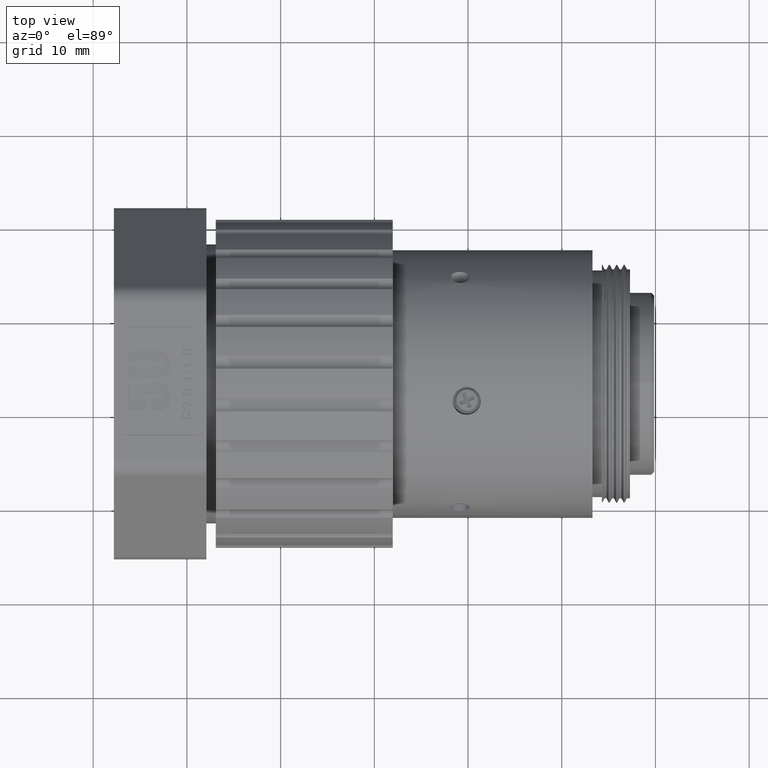
[diagram: clean part render]
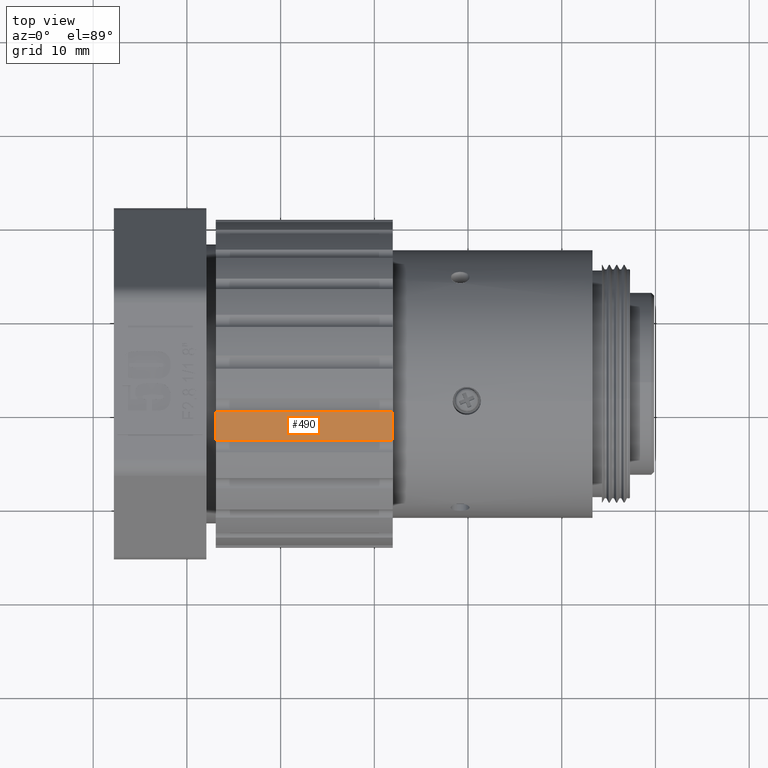
[diagram: same view with one face highlighted and labeled with its STEP entity id]
A machine part, top view. The second image highlights one B-rep face of the part: STEP entity #490.
In plain terms, the highlighted cylindrical surface (partial cylindrical patch) has radius 17.5 mm, axis along (-1, 0, -0).
Its self-contained STEP definition (entity closure, byte-faithful):
#103 = DIRECTION ( 'NONE',  ( 1.000000000000000000, -0.000000000000000000, 0.000000000000000000 ) ) ;
#490 = ADVANCED_FACE ( 'NONE', ( #13999 ), #4331, .T. ) ;
#719 = EDGE_CURVE ( 'NONE', #11001, #8869, #8348, .T. ) ;
#773 = CARTESIAN_POINT ( 'NONE',  ( -26.91612139076693211, -9.998997671935683229, 17.19819297908764355 ) ) ;
#832 = CARTESIAN_POINT ( 'NONE',  ( -26.91612139076693211, -6.762926249001210977, 2.442490654175344389E-12 ) ) ;
#1726 = CIRCLE ( 'NONE', #10356, 17.50000000000540012 ) ;
#2184 = AXIS2_PLACEMENT_3D ( 'NONE', #832, #5635, #5485 ) ;
#2194 = ORIENTED_EDGE ( 'NONE', *, *, #719, .T. ) ;
#2938 = CARTESIAN_POINT ( 'NONE',  ( -8.031010005843386423, -6.762926249001210977, 2.442490654175344389E-12 ) ) ;
#3965 = CARTESIAN_POINT ( 'NONE',  ( -32.35023582608875614, -9.998997671934795051, 17.19819297908775724 ) ) ;
#4331 = CYLINDRICAL_SURFACE ( 'NONE', #10583, 17.50000000000540012 ) ;
#4443 = CARTESIAN_POINT ( 'NONE',  ( -8.031010005843386423, -9.998997671935683229, 17.19819297908764355 ) ) ;
#5040 = LINE ( 'NONE', #3965, #11801 ) ;
#5472 = ORIENTED_EDGE ( 'NONE', *, *, #7835, .T. ) ;
#5485 = DIRECTION ( 'NONE',  ( 0.000000000000000000, -0.1454526080881511640, 0.9893652201287220782 ) ) ;
#5635 = DIRECTION ( 'NONE',  ( 1.000000000000000000, -0.000000000000000000, 0.000000000000000000 ) ) ;
#6087 = ORIENTED_EDGE ( 'NONE', *, *, #9428, .T. ) ;
#7744 = VERTEX_POINT ( 'NONE', #4443 ) ;
#7835 = EDGE_CURVE ( 'NONE', #8869, #10467, #10694, .T. ) ;
#8348 = CIRCLE ( 'NONE', #2184, 17.50000000000540012 ) ;
#8396 = ORIENTED_EDGE ( 'NONE', *, *, #12312, .T. ) ;
#8869 = VERTEX_POINT ( 'NONE', #10933 ) ;
#9043 = DIRECTION ( 'NONE',  ( -1.000000000000000000, 0.000000000000000000, -0.000000000000000000 ) ) ;
#9428 = EDGE_CURVE ( 'NONE', #7744, #11001, #5040, .T. ) ;
#9794 = DIRECTION ( 'NONE',  ( -1.000000000000000000, 0.000000000000000000, -0.000000000000000000 ) ) ;
#10206 = CARTESIAN_POINT ( 'NONE',  ( -32.35023582608875614, -6.762926249001210977, 2.442490654175344389E-12 ) ) ;
#10356 = AXIS2_PLACEMENT_3D ( 'NONE', #2938, #9794, #14525 ) ;
#10467 = VERTEX_POINT ( 'NONE', #15163 ) ;
#10583 = AXIS2_PLACEMENT_3D ( 'NONE', #10206, #9043, #15089 ) ;
#10694 = LINE ( 'NONE', #12094, #11783 ) ;
#10933 = CARTESIAN_POINT ( 'NONE',  ( -26.91612139076693211, -13.05449364855615357, 16.32991670698691422 ) ) ;
#11001 = VERTEX_POINT ( 'NONE', #773 ) ;
#11720 = EDGE_LOOP ( 'NONE', ( #8396, #6087, #2194, #5472 ) ) ;
#11783 = VECTOR ( 'NONE', #103, 1000.000000000000000 ) ;
#11801 = VECTOR ( 'NONE', #12462, 1000.000000000000000 ) ;
#12094 = CARTESIAN_POINT ( 'NONE',  ( -32.35023582608875614, -13.05449364855437722, 16.32991670698746844 ) ) ;
#12312 = EDGE_CURVE ( 'NONE', #10467, #7744, #1726, .T. ) ;
#12462 = DIRECTION ( 'NONE',  ( -1.000000000000000000, 0.000000000000000000, -0.000000000000000000 ) ) ;
#13999 = FACE_OUTER_BOUND ( 'NONE', #11720, .T. ) ;
#14525 = DIRECTION ( 'NONE',  ( 0.000000000000000000, -0.1454526080881511640, 0.9893652201287220782 ) ) ;
#15089 = DIRECTION ( 'NONE',  ( 0.000000000000000000, -0.1454526080881511640, 0.9893652201287220782 ) ) ;
#15163 = CARTESIAN_POINT ( 'NONE',  ( -8.031010005843386423, -13.05449364855615357, 16.32991670698691422 ) ) ;